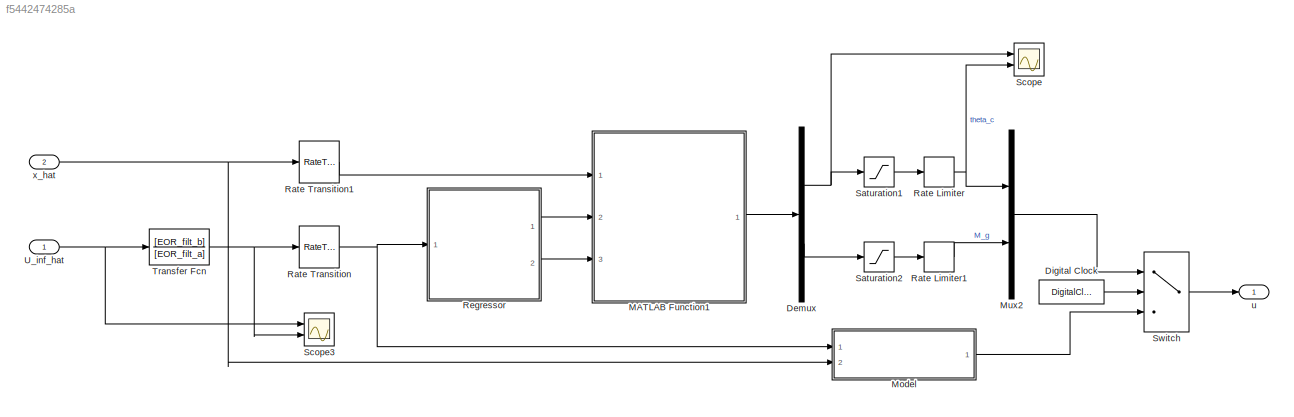
MODEL slx_f5442474285a
KIND model
CONFIG AbsTol = auto
CONFIG EnableMultiTasking = on
CONFIG FixedStep = DT
CONFIG MaxStep = auto
CONFIG MinStep = auto
CONFIG RelTol = 1e-3
CONFIG SampleTimeConstraint = Unconstrained
CONFIG SolverName = FixedStepAuto
CONFIG StartTime = 0.0
CONFIG StopTime = TMax
BLOCK [Demux] Demux
  Outputs = 2
  Ports = [1, 2]
BLOCK [DigitalClock] Digital Clock
  SampleTime = EOR_T
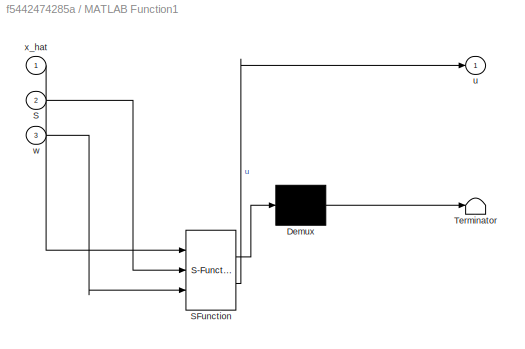
BLOCK [SubSystem] MATLAB Function1
  ErrorFcn = Stateflow.Translate.translate
  PermitHierarchicalResolution = ExplicitOnly
  Ports = [3, 1]
  RequestExecContextInheritance = off
  SFBlockType = MATLAB Function
  TreatAsAtomicUnit = on
BLOCK [Demux] MATLAB Function1/ Demux 
  Outputs = 1
  Ports = [1, 1]
BLOCK [S-Function] MATLAB Function1/ SFunction 
  EnableBusSupport = on
  FunctionName = sf_sfun
  Parameters = EOR_A2,EOR_A3,EOR_B2,EOR_B3,EOR_C2e,EOR_C3e,EOR_D2eu,EOR_D2ew,EOR_D3eu,EOR_D3ew,EOR_E2w,EOR_E3w,EOR_F2,EOR_F3,EOR_T,EOR_T_solve,EOR_u_star,EOR_x_star,M_rated,windspeed
  PortCounts = [3 2]
  Ports = [3, 2]
  SFcnIsStateOwnerBlock = off
  SFunctionDeploymentMode = off
  Tag = Stateflow S-Function 3
BLOCK [Terminator] MATLAB Function1/ Terminator 
BLOCK [Inport] MATLAB Function1/S
  Port = 2
BLOCK [Outport] MATLAB Function1/u
BLOCK [Inport] MATLAB Function1/w
  Port = 3
BLOCK [Inport] MATLAB Function1/x_hat
BLOCK [ModelReference] Model
  ModelNameDialog = BLCTRL.slx
  ModelReferenceVersion = 2.4
  Ports = [2, 1]
BLOCK [Mux] Mux2
  DisplayOption = bar
  Inputs = 2
  Ports = [2, 1]
BLOCK [RateLimiter] Rate Limiter
  FallingSlewLimit = -BLCTRL_theta_rate
  RisingSlewLimit = BLCTRL_theta_rate
  SampleTimeMode = inherited
BLOCK [RateLimiter] Rate Limiter1
  FallingSlewLimit = -BLCTRL_torque_rate
  RisingSlewLimit = BLCTRL_torque_rate
  SampleTimeMode = inherited
BLOCK [RateTransition] Rate Transition
  OutPortSampleTime = EOR_T
BLOCK [RateTransition] Rate Transition1
  InitialCondition = zeros(5,1)
  OutPortSampleTime = EOR_T
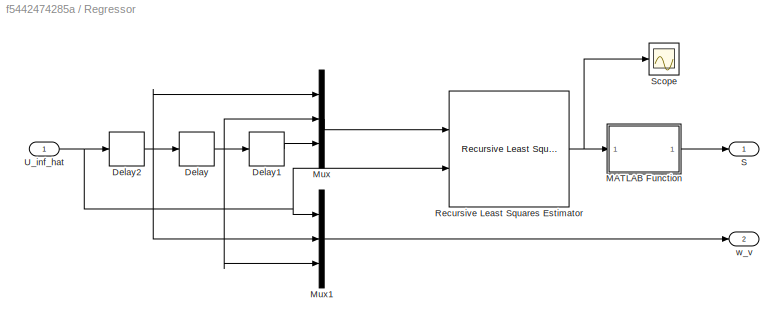
BLOCK [SubSystem] Regressor
  Ports = [1, 2]
  RequestExecContextInheritance = off
BLOCK [Delay] Regressor/Delay
  DelayLength = 1
  InputPortMap = u0
  Ports = [1, 1]
BLOCK [Delay] Regressor/Delay1
  DelayLength = 1
  InputPortMap = u0
  Ports = [1, 1]
BLOCK [Delay] Regressor/Delay2
  DelayLength = 1
  InputPortMap = u0
  Ports = [1, 1]
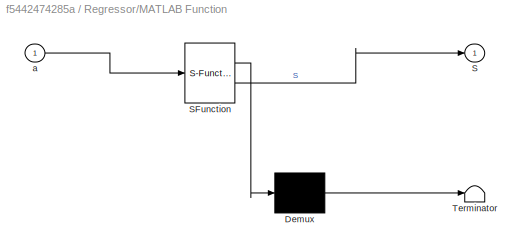
BLOCK [SubSystem] Regressor/MATLAB Function
  ErrorFcn = Stateflow.Translate.translate
  PermitHierarchicalResolution = ExplicitOnly
  Ports = [1, 1]
  RequestExecContextInheritance = off
  SFBlockType = MATLAB Function
  TreatAsAtomicUnit = on
BLOCK [Demux] Regressor/MATLAB Function/ Demux 
  Outputs = 1
  Ports = [1, 1]
BLOCK [S-Function] Regressor/MATLAB Function/ SFunction 
  EnableBusSupport = on
  FunctionName = sf_sfun
  PortCounts = [1 2]
  Ports = [1, 2]
  SFcnIsStateOwnerBlock = off
  SFunctionDeploymentMode = off
  Tag = Stateflow S-Function 2
BLOCK [Terminator] Regressor/MATLAB Function/ Terminator 
BLOCK [Outport] Regressor/MATLAB Function/S
BLOCK [Inport] Regressor/MATLAB Function/a
BLOCK [Mux] Regressor/Mux
  DisplayOption = bar
  Inputs = 3
  Ports = [3, 1]
BLOCK [Mux] Regressor/Mux1
  DisplayOption = bar
  Inputs = 3
  Ports = [3, 1]
BLOCK [Reference] Regressor/Recursive Least Squares Estimator  REF=ctrlSharedLib/Recursive Least Squares Estimator
  Ports = [2, 1]
  SourceBlock = ctrlSharedLib/Recursive Least Squares Estimator
  SourceProductBaseCode = CT,ID
  SourceType = idEstimatorsRLS
BLOCK [Outport] Regressor/S
BLOCK [Scope] Regressor/Scope
  Floating = off
  NumInputPorts = 1
  Ports = [1]
  ScopeSpecificationString = Simulink.scopes.TimeScopeBlockCfg('CurrentConfiguration', extmgr.ConfigurationSet(extmgr.Configuration('Core','General UI',true),extmgr.Configuration('Core','Source UI',true),extmgr.Configuration('Sources','WiredSimulink',true),extmgr.Configuration('Visuals','Time Domain',true,'SerializedDisplays',{struct('MinYLimReal','-1.77896','MaxYLimReal','2.57015','YLabelReal','','MinYLimMag','0.00000','MaxY...<+1515ch>
BLOCK [Inport] Regressor/U_inf_hat
BLOCK [Outport] Regressor/w_v
  Port = 2
BLOCK [Saturate] Saturation1
  LowerLimit = BLCTRL_theta_star
  UpperLimit = BLCTRL_theta_max
BLOCK [Saturate] Saturation2
  LowerLimit = -1.1*BLCTRL_M_2
  UpperLimit = 1.1*BLCTRL_M_2
BLOCK [Scope] Scope
  Floating = off
  NumInputPorts = 2
  Ports = [2]
  ScopeSpecificationString = Simulink.scopes.TimeScopeBlockCfg('CurrentConfiguration', extmgr.ConfigurationSet(extmgr.Configuration('Core','General UI',true),extmgr.Configuration('Core','Source UI',true),extmgr.Configuration('Sources','WiredSimulink',true,'DataLoggingVariableName','ScopeData1'),extmgr.Configuration('Visuals','Time Domain',true,'SerializedDisplays',{struct('MinYLimReal','0.00000019','MaxYLimReal','0.00000039',...<+1417ch>
BLOCK [Scope] Scope3
  Floating = off
  NumInputPorts = 2
  Ports = [2]
  ScopeSpecificationString = Simulink.scopes.TimeScopeBlockCfg('CurrentConfiguration', extmgr.ConfigurationSet(extmgr.Configuration('Core','General UI',true),extmgr.Configuration('Core','Source UI',true),extmgr.Configuration('Sources','WiredSimulink',true,'DataLoggingVariableName','ScopeData2'),extmgr.Configuration('Visuals','Time Domain',true,'SerializedDisplays',{struct('MinYLimReal','5.24202','MaxYLimReal','7.45336','YLabe...<+1455ch>
BLOCK [Switch] Switch
  Criteria = u2 > Threshold
  InputSameDT = off
  SaturateOnIntegerOverflow = off
  Threshold = EOR_T_setup
BLOCK [TransferFcn] Transfer Fcn
  Denominator = [EOR_filt_a]
  Numerator = [EOR_filt_b]
BLOCK [Inport] U_inf_hat
  PortDimensions = 1
BLOCK [Outport] u
  PortDimensions = [2 1]
BLOCK [Inport] x_hat
  Port = 2
  PortDimensions = [5 1]
NET Demux:1 -> Saturation1:1, Scope:1
LINE Demux:2 -> Saturation2:1
LINE Digital Clock:1 -> Switch:2
LINE MATLAB Function1:1 -> Demux:1
LINE Model:1 -> Switch:3
LINE Mux2:1 -> Switch:1
LINE Rate Limiter1:1 -> Mux2:2
NET Rate Limiter:1 -> Mux2:1, Scope:2
LINE Rate Transition1:1 -> MATLAB Function1:1
NET Rate Transition:1 -> Model:1, Regressor:1
LINE Regressor/Delay1:1 -> Regressor/Mux:3
NET Regressor/Delay2:1 -> Regressor/Delay:1, Regressor/Mux1:2, Regressor/Mux:1
NET Regressor/Delay:1 -> Regressor/Delay1:1, Regressor/Mux1:3, Regressor/Mux:2
LINE Regressor/MATLAB Function:1 -> Regressor/S:1
LINE Regressor/Mux1:1 -> Regressor/w_v:1
LINE Regressor/Mux:1 -> Regressor/Recursive Least Squares Estimator:1
NET Regressor/Recursive Least Squares Estimator:1 -> Regressor/MATLAB Function:1, Regressor/Scope:1
NET Regressor/U_inf_hat:1 -> Regressor/Delay2:1, Regressor/Mux1:1, Regressor/Recursive Least Squares Estimator:2
LINE Regressor:1 -> MATLAB Function1:2
LINE Regressor:2 -> MATLAB Function1:3
LINE Saturation1:1 -> Rate Limiter:1
LINE Saturation2:1 -> Rate Limiter1:1
LINE Switch:1 -> u:1
NET Transfer Fcn:1 -> Rate Transition:1, Scope3:2
NET U_inf_hat:1 -> Scope3:1, Transfer Fcn:1
NET x_hat:1 -> Model:2, Rate Transition1:1
note: NET lines group one-source signal fan-out (src -> all destinations, sorted); 1:1 wires keep LINE
CHART Regressor/MATLAB Function states=1 transitions=1
  STATE_LABEL 'eML_blk_kernel()'
  STATE_LABEL 'SCRIPT:\nfunction S = fcn(a)\n\n    S = [a(1) a(2) a(3); 1 0 0; 0 1 0];\n\nend\n'
CHART MATLAB Function1 states=1 transitions=1
  STATE_LABEL 'eML_blk_kernel()'
  STATE_LABEL 'SCRIPT:\nfunction u  = EOR(x_hat, S, w, EOR_T, EOR_T_solve, EOR_x_star, EOR_A2, EOR_B2, EOR_C2e, EOR_u_star, EOR_E2w, EOR_D2eu, EOR_D2ew, EOR_A3, EOR_B3, EOR_C3e, EOR_E3w, EOR_D3eu, EOR_D3ew, windspeed, EOR_F3, EOR_F2, M_rated)\n\n    persistent t;\n    if isempty(t)\n        t = 0;\n    end\n    \n    persistent G2 G3;\n    if isempty(G2)\n        G2 = zeros(1,3);\n        G3 = zeros(1,3);\n    end\n    \n    ...<+810ch>'
CHART  states=0 transitions=0
CHART  states=0 transitions=0
